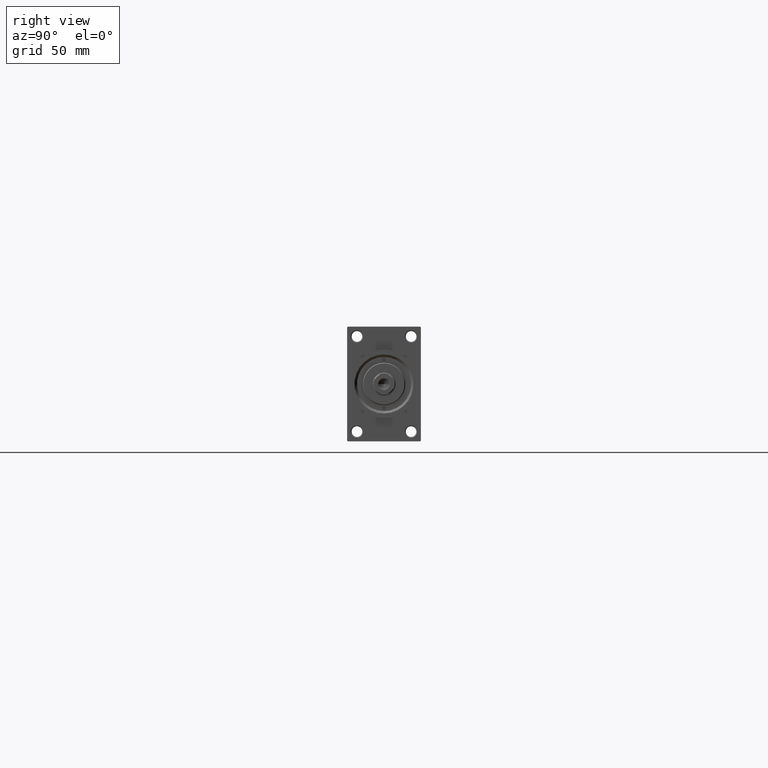
[diagram: clean part render]
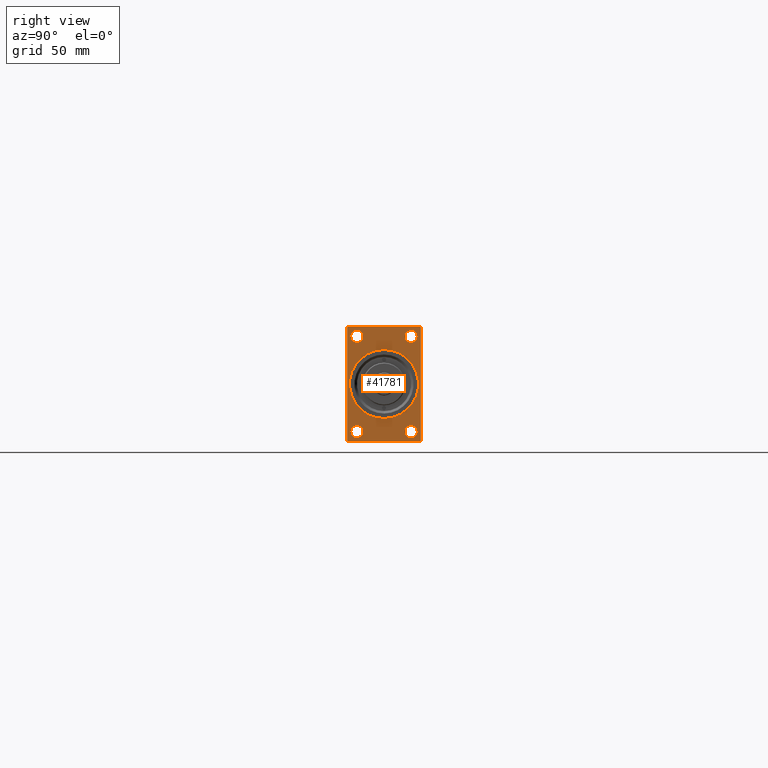
[diagram: same view with one face highlighted and labeled with its STEP entity id]
A machine part, right view. The second image highlights one B-rep face of the part: STEP entity #41781.
In plain terms, the highlighted planar face has unit normal (-1, 0, 0).
Its self-contained STEP definition (entity closure, byte-faithful):
#280 = DIRECTION ( 'NONE',  ( 1.000000000000000000, 0.000000000000000000, 0.000000000000000000 ) ) ;
#1598 = EDGE_CURVE ( 'NONE', #6063, #15390, #20863, .T. ) ;
#1851 = LINE ( 'NONE', #35381, #24106 ) ;
#2353 = DIRECTION ( 'NONE',  ( 0.000000000000000000, 0.000000000000000000, 1.000000000000000000 ) ) ;
#2546 = LINE ( 'NONE', #32483, #36478 ) ;
#2605 = EDGE_LOOP ( 'NONE', ( #18272, #17255 ) ) ;
#3443 = AXIS2_PLACEMENT_3D ( 'NONE', #39426, #10453, #21016 ) ;
#3518 = CARTESIAN_POINT ( 'NONE',  ( 393.0000000000000000, 16.50000000000000000, 25.24999999999997513 ) ) ;
#3912 = LINE ( 'NONE', #29339, #45465 ) ;
#4169 = EDGE_CURVE ( 'NONE', #19433, #27644, #28487, .T. ) ;
#4340 = EDGE_LOOP ( 'NONE', ( #31755, #42116 ) ) ;
#4415 = VERTEX_POINT ( 'NONE', #5236 ) ;
#5051 = CARTESIAN_POINT ( 'NONE',  ( 393.0000000000000000, 16.50000000000000000, 29.00000000000000355 ) ) ;
#5148 = VERTEX_POINT ( 'NONE', #34483 ) ;
#5236 = CARTESIAN_POINT ( 'NONE',  ( 393.0000000000000000, -16.50000000000000000, 25.24999999999998224 ) ) ;
#5490 = DIRECTION ( 'NONE',  ( 0.000000000000000000, 0.000000000000000000, 1.000000000000000000 ) ) ;
#5782 = CARTESIAN_POINT ( 'NONE',  ( 393.0000000000000000, 16.50000000000000000, -32.75000000000002842 ) ) ;
#5877 = ORIENTED_EDGE ( 'NONE', *, *, #33930, .T. ) ;
#6063 = VERTEX_POINT ( 'NONE', #5782 ) ;
#6732 = CARTESIAN_POINT ( 'NONE',  ( 393.0000000000000000, -22.50000000000000355, 35.00000000000000000 ) ) ;
#7094 = AXIS2_PLACEMENT_3D ( 'NONE', #12272, #27140, #23068 ) ;
#7260 = ORIENTED_EDGE ( 'NONE', *, *, #10607, .T. ) ;
#7447 = EDGE_LOOP ( 'NONE', ( #20618, #34844 ) ) ;
#7668 = EDGE_LOOP ( 'NONE', ( #5877, #17101 ) ) ;
#7758 = FACE_BOUND ( 'NONE', #2605, .T. ) ;
#8745 = DIRECTION ( 'NONE',  ( 0.000000000000000000, -0.7071067811865474617, 0.7071067811865474617 ) ) ;
#8935 = AXIS2_PLACEMENT_3D ( 'NONE', #23652, #40871, #23161 ) ;
#9085 = CARTESIAN_POINT ( 'NONE',  ( 393.0000000000000000, -16.50000000000000000, 29.00000000000000711 ) ) ;
#9257 = VERTEX_POINT ( 'NONE', #22210 ) ;
#9407 = DIRECTION ( 'NONE',  ( 0.000000000000000000, 0.000000000000000000, -1.000000000000000000 ) ) ;
#9408 = VERTEX_POINT ( 'NONE', #43395 ) ;
#10022 = EDGE_CURVE ( 'NONE', #4415, #21452, #43188, .T. ) ;
#10453 = DIRECTION ( 'NONE',  ( -1.000000000000000000, -0.000000000000000000, -0.000000000000000000 ) ) ;
#10607 = EDGE_CURVE ( 'NONE', #21452, #4415, #28719, .T. ) ;
#10826 = CARTESIAN_POINT ( 'NONE',  ( 393.0000000000000000, -21.99999999999993250, 35.00000000000000000 ) ) ;
#11265 = DIRECTION ( 'NONE',  ( 0.000000000000000000, 0.000000000000000000, 1.000000000000000000 ) ) ;
#11570 = CARTESIAN_POINT ( 'NONE',  ( 393.0000000000000000, -16.50000000000000000, 32.75000000000003553 ) ) ;
#11631 = LINE ( 'NONE', #11865, #39466 ) ;
#11865 = CARTESIAN_POINT ( 'NONE',  ( 393.0000000000000000, 21.99999999999988276, 35.00000000000000000 ) ) ;
#12180 = EDGE_CURVE ( 'NONE', #15390, #6063, #18004, .T. ) ;
#12272 = CARTESIAN_POINT ( 'NONE',  ( 393.0000000000000000, 16.50000000000000000, 29.00000000000000355 ) ) ;
#13228 = EDGE_CURVE ( 'NONE', #33793, #24652, #11631, .T. ) ;
#14271 = AXIS2_PLACEMENT_3D ( 'NONE', #24202, #24432, #5490 ) ;
#14378 = DIRECTION ( 'NONE',  ( -1.000000000000000000, -0.000000000000000000, -0.000000000000000000 ) ) ;
#14491 = FACE_BOUND ( 'NONE', #34896, .T. ) ;
#14856 = DIRECTION ( 'NONE',  ( -1.000000000000000000, -0.000000000000000000, -0.000000000000000000 ) ) ;
#14969 = FACE_BOUND ( 'NONE', #4340, .T. ) ;
#15390 = VERTEX_POINT ( 'NONE', #34705 ) ;
#16227 = CARTESIAN_POINT ( 'NONE',  ( 393.0000000000000000, 2.571758278209441661E-15, -21.00000000000000000 ) ) ;
#16541 = VERTEX_POINT ( 'NONE', #19221 ) ;
#17101 = ORIENTED_EDGE ( 'NONE', *, *, #4169, .T. ) ;
#17218 = CARTESIAN_POINT ( 'NONE',  ( 393.0000000000000000, 21.99999999999988276, 35.00000000000000000 ) ) ;
#17255 = ORIENTED_EDGE ( 'NONE', *, *, #12180, .T. ) ;
#17706 = CIRCLE ( 'NONE', #23081, 21.00000000000000000 ) ;
#17813 = CARTESIAN_POINT ( 'NONE',  ( 393.0000000000000000, 22.49999999999999645, 34.49999999999989342 ) ) ;
#17963 = EDGE_CURVE ( 'NONE', #25332, #9408, #19657, .T. ) ;
#17970 = DIRECTION ( 'NONE',  ( 0.000000000000000000, 0.000000000000000000, 1.000000000000000000 ) ) ;
#18004 = CIRCLE ( 'NONE', #3443, 3.750000000000034639 ) ;
#18272 = ORIENTED_EDGE ( 'NONE', *, *, #1598, .T. ) ;
#18752 = CARTESIAN_POINT ( 'NONE',  ( 393.0000000000000000, 22.49999999999999645, -35.00000000000000000 ) ) ;
#19221 = CARTESIAN_POINT ( 'NONE',  ( 393.0000000000000000, 21.99999999999993960, -35.00000000000000000 ) ) ;
#19433 = VERTEX_POINT ( 'NONE', #35485 ) ;
#19657 = CIRCLE ( 'NONE', #14271, 3.750000000000034639 ) ;
#19973 = CIRCLE ( 'NONE', #46703, 3.750000000000034639 ) ;
#20114 = DIRECTION ( 'NONE',  ( -1.000000000000000000, -0.000000000000000000, -0.000000000000000000 ) ) ;
#20245 = AXIS2_PLACEMENT_3D ( 'NONE', #9085, #20114, #2353 ) ;
#20386 = ORIENTED_EDGE ( 'NONE', *, *, #36683, .T. ) ;
#20557 = DIRECTION ( 'NONE',  ( 0.000000000000000000, 0.7071067811865474617, -0.7071067811865474617 ) ) ;
#20618 = ORIENTED_EDGE ( 'NONE', *, *, #45211, .F. ) ;
#20863 = CIRCLE ( 'NONE', #44546, 3.750000000000034639 ) ;
#21016 = DIRECTION ( 'NONE',  ( 0.000000000000000000, 0.000000000000000000, 1.000000000000000000 ) ) ;
#21408 = CARTESIAN_POINT ( 'NONE',  ( 393.0000000000000000, -16.50000000000000000, 29.00000000000000711 ) ) ;
#21452 = VERTEX_POINT ( 'NONE', #11570 ) ;
#21521 = CARTESIAN_POINT ( 'NONE',  ( 393.0000000000000000, 22.49999999999999645, -34.49999999999995026 ) ) ;
#21981 = ORIENTED_EDGE ( 'NONE', *, *, #46606, .F. ) ;
#22210 = CARTESIAN_POINT ( 'NONE',  ( 393.0000000000000000, -22.50000000000000355, -34.49999999999995026 ) ) ;
#22397 = DIRECTION ( 'NONE',  ( -1.000000000000000000, 0.000000000000000000, -0.000000000000000000 ) ) ;
#22747 = CARTESIAN_POINT ( 'NONE',  ( 393.0000000000000000, -16.50000000000000000, -28.99999999999999289 ) ) ;
#23068 = DIRECTION ( 'NONE',  ( 0.000000000000000000, 0.000000000000000000, 1.000000000000000000 ) ) ;
#23081 = AXIS2_PLACEMENT_3D ( 'NONE', #37182, #280, #40294 ) ;
#23161 = DIRECTION ( 'NONE',  ( 0.000000000000000000, 0.000000000000000000, -1.000000000000000000 ) ) ;
#23577 = ORIENTED_EDGE ( 'NONE', *, *, #30924, .T. ) ;
#23652 = CARTESIAN_POINT ( 'NONE',  ( 393.0000000000000000, 0.000000000000000000, 0.000000000000000000 ) ) ;
#23971 = CIRCLE ( 'NONE', #7094, 3.750000000000031086 ) ;
#24003 = EDGE_CURVE ( 'NONE', #33793, #46010, #43613, .T. ) ;
#24106 = VECTOR ( 'NONE', #20557, 1000.000000000000114 ) ;
#24202 = CARTESIAN_POINT ( 'NONE',  ( 393.0000000000000000, -16.50000000000000000, -28.99999999999999289 ) ) ;
#24274 = VECTOR ( 'NONE', #36702, 1000.000000000000000 ) ;
#24279 = CARTESIAN_POINT ( 'NONE',  ( 393.0000000000000000, -16.50000000000000000, -32.75000000000002842 ) ) ;
#24432 = DIRECTION ( 'NONE',  ( -1.000000000000000000, -0.000000000000000000, -0.000000000000000000 ) ) ;
#24437 = EDGE_CURVE ( 'NONE', #9408, #25332, #19973, .T. ) ;
#24504 = ORIENTED_EDGE ( 'NONE', *, *, #24003, .F. ) ;
#24523 = ORIENTED_EDGE ( 'NONE', *, *, #13228, .T. ) ;
#24652 = VERTEX_POINT ( 'NONE', #17218 ) ;
#25244 = VERTEX_POINT ( 'NONE', #33136 ) ;
#25271 = FACE_OUTER_BOUND ( 'NONE', #32403, .T. ) ;
#25289 = DIRECTION ( 'NONE',  ( -1.000000000000000000, -0.000000000000000000, -0.000000000000000000 ) ) ;
#25332 = VERTEX_POINT ( 'NONE', #24279 ) ;
#25989 = FACE_BOUND ( 'NONE', #7668, .T. ) ;
#26262 = VERTEX_POINT ( 'NONE', #10826 ) ;
#26791 = EDGE_CURVE ( 'NONE', #16541, #46010, #39224, .T. ) ;
#27140 = DIRECTION ( 'NONE',  ( -1.000000000000000000, -0.000000000000000000, -0.000000000000000000 ) ) ;
#27536 = CARTESIAN_POINT ( 'NONE',  ( 393.0000000000000000, 22.49999999999999645, -34.49999999999995026 ) ) ;
#27644 = VERTEX_POINT ( 'NONE', #3518 ) ;
#28435 = CARTESIAN_POINT ( 'NONE',  ( 393.0000000000000000, 16.50000000000000000, -28.99999999999999289 ) ) ;
#28487 = CIRCLE ( 'NONE', #42239, 3.750000000000031086 ) ;
#28719 = CIRCLE ( 'NONE', #42444, 3.750000000000027534 ) ;
#29108 = DIRECTION ( 'NONE',  ( -0.000000000000000000, 0.000000000000000000, 1.000000000000000000 ) ) ;
#29339 = CARTESIAN_POINT ( 'NONE',  ( 393.0000000000000000, 22.49999999999999645, 35.00000000000000000 ) ) ;
#29929 = EDGE_CURVE ( 'NONE', #43884, #36392, #17706, .T. ) ;
#30024 = ORIENTED_EDGE ( 'NONE', *, *, #26791, .T. ) ;
#30924 = EDGE_CURVE ( 'NONE', #5148, #9257, #39557, .T. ) ;
#31584 = DIRECTION ( 'NONE',  ( -0.000000000000000000, 0.7071067811865474617, 0.7071067811865474617 ) ) ;
#31755 = ORIENTED_EDGE ( 'NONE', *, *, #17963, .T. ) ;
#31788 = AXIS2_PLACEMENT_3D ( 'NONE', #40812, #22397, #29108 ) ;
#31893 = CIRCLE ( 'NONE', #8935, 21.00000000000000000 ) ;
#32403 = EDGE_LOOP ( 'NONE', ( #23577, #20386, #21981, #30024, #24504, #24523, #32630, #36089 ) ) ;
#32422 = LINE ( 'NONE', #18752, #24274 ) ;
#32483 = CARTESIAN_POINT ( 'NONE',  ( 393.0000000000000000, -22.50000000000000355, 34.49999999999995026 ) ) ;
#32630 = ORIENTED_EDGE ( 'NONE', *, *, #40555, .T. ) ;
#33037 = VECTOR ( 'NONE', #9407, 1000.000000000000000 ) ;
#33136 = CARTESIAN_POINT ( 'NONE',  ( 393.0000000000000000, -21.99999999999993250, -35.00000000000000000 ) ) ;
#33579 = DIRECTION ( 'NONE',  ( 0.000000000000000000, 0.000000000000000000, 1.000000000000000000 ) ) ;
#33793 = VERTEX_POINT ( 'NONE', #17813 ) ;
#33817 = DIRECTION ( 'NONE',  ( -1.000000000000000000, -0.000000000000000000, -0.000000000000000000 ) ) ;
#33930 = EDGE_CURVE ( 'NONE', #27644, #19433, #23971, .T. ) ;
#34428 = VECTOR ( 'NONE', #31584, 1000.000000000000114 ) ;
#34483 = CARTESIAN_POINT ( 'NONE',  ( 393.0000000000000000, -22.50000000000000355, 34.49999999999995026 ) ) ;
#34705 = CARTESIAN_POINT ( 'NONE',  ( 393.0000000000000000, 16.50000000000000000, -25.24999999999996447 ) ) ;
#34844 = ORIENTED_EDGE ( 'NONE', *, *, #29929, .F. ) ;
#34896 = EDGE_LOOP ( 'NONE', ( #47103, #7260 ) ) ;
#35289 = CARTESIAN_POINT ( 'NONE',  ( 393.0000000000000000, 22.49999999999999645, 35.00000000000000000 ) ) ;
#35374 = DIRECTION ( 'NONE',  ( -0.000000000000000000, -0.7071067811865474617, -0.7071067811865474617 ) ) ;
#35381 = CARTESIAN_POINT ( 'NONE',  ( 393.0000000000000000, -21.99999999999994671, -35.00000000000000000 ) ) ;
#35485 = CARTESIAN_POINT ( 'NONE',  ( 393.0000000000000000, 16.50000000000000000, 32.75000000000003553 ) ) ;
#36089 = ORIENTED_EDGE ( 'NONE', *, *, #47147, .T. ) ;
#36392 = VERTEX_POINT ( 'NONE', #41663 ) ;
#36478 = VECTOR ( 'NONE', #35374, 1000.000000000000114 ) ;
#36683 = EDGE_CURVE ( 'NONE', #9257, #25244, #1851, .T. ) ;
#36702 = DIRECTION ( 'NONE',  ( 0.000000000000000000, -1.000000000000000000, 0.000000000000000000 ) ) ;
#36750 = PLANE ( 'NONE',  #31788 ) ;
#37182 = CARTESIAN_POINT ( 'NONE',  ( 393.0000000000000000, 0.000000000000000000, 0.000000000000000000 ) ) ;
#38326 = VECTOR ( 'NONE', #47202, 1000.000000000000000 ) ;
#39224 = LINE ( 'NONE', #27536, #34428 ) ;
#39426 = CARTESIAN_POINT ( 'NONE',  ( 393.0000000000000000, 16.50000000000000000, -28.99999999999999289 ) ) ;
#39466 = VECTOR ( 'NONE', #8745, 1000.000000000000114 ) ;
#39557 = LINE ( 'NONE', #6732, #33037 ) ;
#40294 = DIRECTION ( 'NONE',  ( 0.000000000000000000, 0.000000000000000000, -1.000000000000000000 ) ) ;
#40555 = EDGE_CURVE ( 'NONE', #24652, #26262, #3912, .T. ) ;
#40812 = CARTESIAN_POINT ( 'NONE',  ( 393.0000000000000000, 0.000000000000000000, 0.000000000000000000 ) ) ;
#40871 = DIRECTION ( 'NONE',  ( 1.000000000000000000, 0.000000000000000000, 0.000000000000000000 ) ) ;
#41663 = CARTESIAN_POINT ( 'NONE',  ( 393.0000000000000000, 0.000000000000000000, 21.00000000000000000 ) ) ;
#41781 = ADVANCED_FACE ( 'NONE', ( #14491, #14969, #7758, #25989, #43452, #25271 ), #36750, .F. ) ;
#42116 = ORIENTED_EDGE ( 'NONE', *, *, #24437, .T. ) ;
#42239 = AXIS2_PLACEMENT_3D ( 'NONE', #5051, #33817, #33579 ) ;
#42444 = AXIS2_PLACEMENT_3D ( 'NONE', #21408, #14856, #11265 ) ;
#43188 = CIRCLE ( 'NONE', #20245, 3.750000000000027534 ) ;
#43395 = CARTESIAN_POINT ( 'NONE',  ( 393.0000000000000000, -16.50000000000000000, -25.24999999999996447 ) ) ;
#43452 = FACE_BOUND ( 'NONE', #7447, .T. ) ;
#43613 = LINE ( 'NONE', #35289, #38326 ) ;
#43694 = DIRECTION ( 'NONE',  ( 0.000000000000000000, 0.000000000000000000, 1.000000000000000000 ) ) ;
#43884 = VERTEX_POINT ( 'NONE', #16227 ) ;
#43906 = DIRECTION ( 'NONE',  ( 0.000000000000000000, -1.000000000000000000, 0.000000000000000000 ) ) ;
#44546 = AXIS2_PLACEMENT_3D ( 'NONE', #28435, #25289, #43694 ) ;
#45211 = EDGE_CURVE ( 'NONE', #36392, #43884, #31893, .T. ) ;
#45465 = VECTOR ( 'NONE', #43906, 1000.000000000000000 ) ;
#46010 = VERTEX_POINT ( 'NONE', #21521 ) ;
#46606 = EDGE_CURVE ( 'NONE', #16541, #25244, #32422, .T. ) ;
#46703 = AXIS2_PLACEMENT_3D ( 'NONE', #22747, #14378, #17970 ) ;
#47103 = ORIENTED_EDGE ( 'NONE', *, *, #10022, .T. ) ;
#47147 = EDGE_CURVE ( 'NONE', #26262, #5148, #2546, .T. ) ;
#47202 = DIRECTION ( 'NONE',  ( 0.000000000000000000, 0.000000000000000000, -1.000000000000000000 ) ) ;